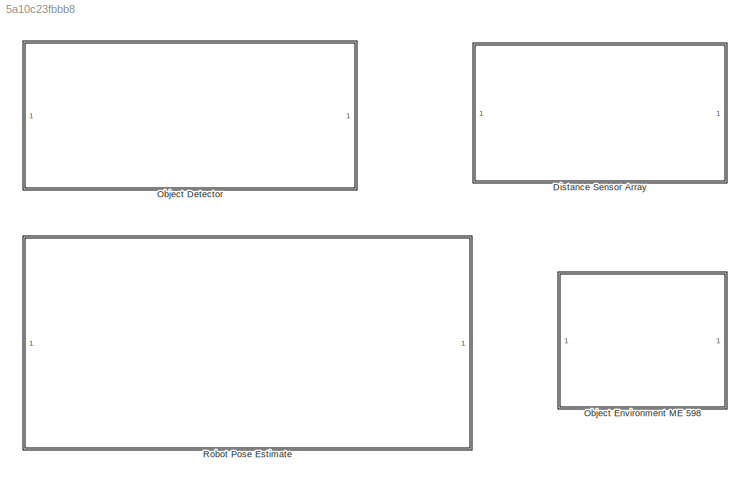
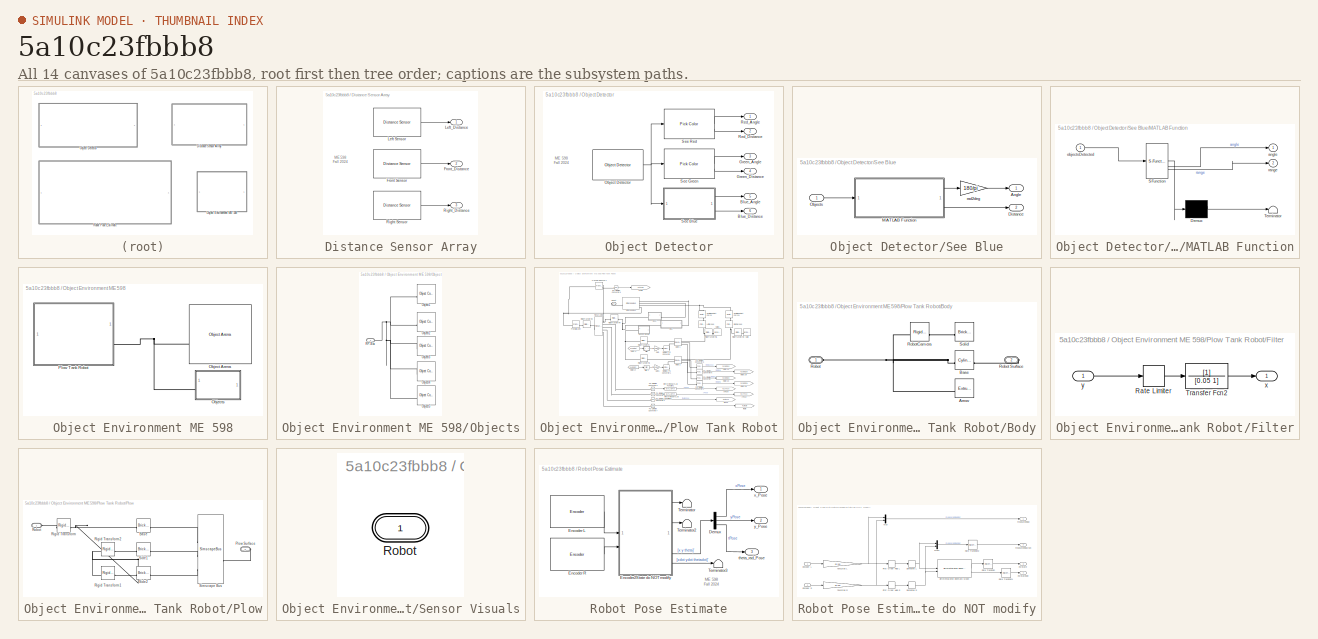
[diagram: thumbnail index - all 14 canvases of the model, root first then tree order]
MODEL slx_5a10c23fbbb8
KIND library
CONFIG AbsTol = auto
CONFIG EnableMultiTasking = off
CONFIG FixedStep = auto
CONFIG InitFcn = RPInit
CONFIG MaxStep = auto
CONFIG MinStep = auto
CONFIG RelTol = 1e-3
CONFIG SampleTimeConstraint = Unconstrained
CONFIG SolverName = ode23t
CONFIG StartTime = 0.0
CONFIG StopTime = 10.0
BLOCK [SubSystem] Distance Sensor Array
BLOCK [Reference] Distance Sensor Array/Front Sensor  REF=RoboticsPlayground/Basic Sensors and Actuators/Distance Sensor
  SourceBlock = RoboticsPlayground/Basic Sensors and Actuators/Distance Sensor
  SourceProductName = Robotics Playground
  SourceType = RP Distance Sensor
BLOCK [Outport] Distance Sensor Array/Front_Distance
  Port = 2
BLOCK [Reference] Distance Sensor Array/Left Sensor  REF=RoboticsPlayground/Basic Sensors and Actuators/Distance Sensor
  SourceBlock = RoboticsPlayground/Basic Sensors and Actuators/Distance Sensor
  SourceProductName = Robotics Playground
  SourceType = RP Distance Sensor
BLOCK [Outport] Distance Sensor Array/Left_Distance
BLOCK [Reference] Distance Sensor Array/Right Sensor  REF=RoboticsPlayground/Basic Sensors and Actuators/Distance Sensor
  SourceBlock = RoboticsPlayground/Basic Sensors and Actuators/Distance Sensor
  SourceProductName = Robotics Playground
  SourceType = RP Distance Sensor
BLOCK [Outport] Distance Sensor Array/Right_Distance
  Port = 3
BLOCK [SubSystem] Object Detector
BLOCK [Outport] Object Detector/Blue_Angle
  Port = 5
BLOCK [Outport] Object Detector/Blue_Distance
  Port = 6
BLOCK [Outport] Object Detector/Green_Angle
  Port = 3
BLOCK [Outport] Object Detector/Green_Distance
  Port = 4
BLOCK [Reference] Object Detector/Object Detector  REF=RoboticsPlayground/Advanced Sensors/Object Detector
  SourceBlock = RoboticsPlayground/Advanced Sensors/Object Detector
  SourceProductName = Robotics Playground
  SourceType = RP Object Sensor
BLOCK [Outport] Object Detector/Red_Angle
BLOCK [Outport] Object Detector/Red_Distance
  Port = 2
BLOCK [SubSystem] Object Detector/See Blue
BLOCK [Outport] Object Detector/See Blue/Angle
  VectorParamsAs1DForOutWhenUnconnected = off
BLOCK [Outport] Object Detector/See Blue/Distance
  Port = 2
  VectorParamsAs1DForOutWhenUnconnected = off
BLOCK [SubSystem] Object Detector/See Blue/MATLAB Function
  ErrorFcn = Stateflow.Translate.translate
  PermitHierarchicalResolution = ExplicitOnly
  SFBlockType = MATLAB Function
  TreatAsAtomicUnit = on
BLOCK [Demux] Object Detector/See Blue/MATLAB Function/ Demux 
  Outputs = 1
BLOCK [S-Function] Object Detector/See Blue/MATLAB Function/ SFunction 
  EnableBusSupport = off
  FunctionName = sf_sfun
  Parameters = color
  PortCounts = [1 3]
  SFcnIsStateOwnerBlock = off
  SFunctionDeploymentMode = off
  Tag = Stateflow S-Function 6
BLOCK [Terminator] Object Detector/See Blue/MATLAB Function/ Terminator 
BLOCK [Outport] Object Detector/See Blue/MATLAB Function/angle
  VectorParamsAs1DForOutWhenUnconnected = off
BLOCK [Inport] Object Detector/See Blue/MATLAB Function/objectsDetected
BLOCK [Outport] Object Detector/See Blue/MATLAB Function/range
  Port = 2
  VectorParamsAs1DForOutWhenUnconnected = off
BLOCK [Inport] Object Detector/See Blue/Objects
BLOCK [Gain] Object Detector/See Blue/rad2deg
  Gain = 180/pi
BLOCK [Reference] Object Detector/See Green  REF=RoboticsPlayground/Advanced Sensors/Pick Color
  SourceBlock = RoboticsPlayground/Advanced Sensors/Pick Color
  SourceProductName = Robotics Playground
  SourceType = RP Pick Color
BLOCK [Reference] Object Detector/See Red  REF=RoboticsPlayground/Advanced Sensors/Pick Color
  SourceBlock = RoboticsPlayground/Advanced Sensors/Pick Color
  SourceProductName = Robotics Playground
  SourceType = RP Pick Color
BLOCK [SubSystem] Object Environment ME 598
  CopyFcn = set_param(gcs,'InitFcn','RPInit');\nset_param(gcs,'Solver','ode23t');\nset_param(gcs, 'EnablePacing', 'on')\nset_param(gcs, 'PacingRate', 1)
BLOCK [Reference] Object Environment ME 598/Object Arena  REF=RP_Simulator_Components/Object Arena
  SourceBlock = RP_Simulator_Components/Object Arena
  SourceType = RP Grid Arena
BLOCK [SubSystem] Object Environment ME 598/Objects
BLOCK [Reference] Object Environment ME 598/Objects/Object1  REF=RP_Simulator_Components/Object Contact-Plow Robot
  SourceBlock = RP_Simulator_Components/Object Contact-Plow Robot
  SourceType = RP Rectangle-Disc obstacle
BLOCK [Reference] Object Environment ME 598/Objects/Object2  REF=RP_Simulator_Components/Object Contact-Plow Robot
  Commented = on
  SourceBlock = RP_Simulator_Components/Object Contact-Plow Robot
  SourceType = RP Rectangle-Disc obstacle
BLOCK [Reference] Object Environment ME 598/Objects/Object3  REF=RP_Simulator_Components/Object Contact-Plow Robot
  SourceBlock = RP_Simulator_Components/Object Contact-Plow Robot
  SourceType = RP Rectangle-Disc obstacle
BLOCK [Reference] Object Environment ME 598/Objects/Object4  REF=RP_Simulator_Components/Object Contact-Plow Robot
  Commented = on
  SourceBlock = RP_Simulator_Components/Object Contact-Plow Robot
  SourceType = RP Rectangle-Disc obstacle
BLOCK [Reference] Object Environment ME 598/Objects/Object5  REF=RP_Simulator_Components/Object Contact-Plow Robot
  Commented = on
  SourceBlock = RP_Simulator_Components/Object Contact-Plow Robot
  SourceType = RP Rectangle-Disc obstacle
BLOCK [PMIOPort] Object Environment ME 598/Objects/RP-Bus
  Side = Left
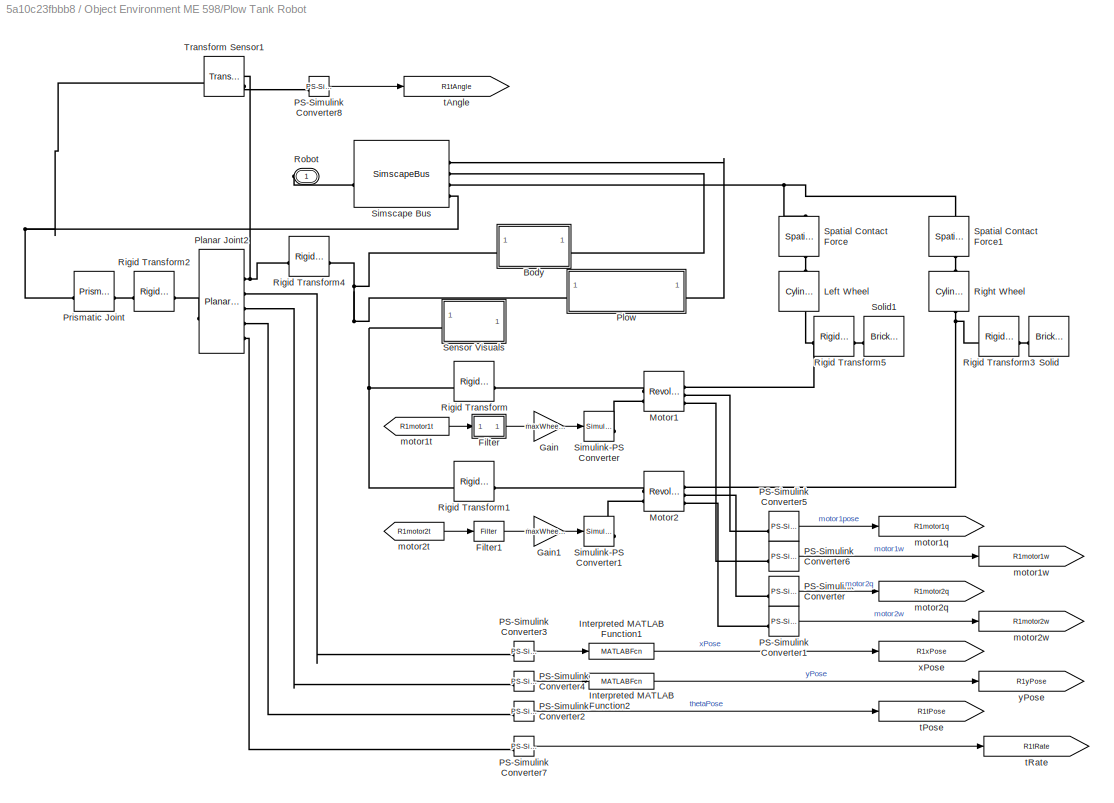
BLOCK [SubSystem] Object Environment ME 598/Plow Tank Robot
  AncestorBlock = RoboticsPlayground/Environments/Object Environment/Plow Tank Robot
BLOCK [SubSystem] Object Environment ME 598/Plow Tank Robot/Body
BLOCK [Reference] Object Environment ME 598/Plow Tank Robot/Body/Arrow  REF=sm_lib/Body Elements/Extruded Solid
  SourceBlock = sm_lib/Body Elements/Extruded Solid
  SourceType = Extruded Solid
BLOCK [Reference] Object Environment ME 598/Plow Tank Robot/Body/Base  REF=sm_lib/Body Elements/Cylindrical Solid
  SourceBlock = sm_lib/Body Elements/Cylindrical Solid
  SourceType = Cylindrical Solid
BLOCK [PMIOPort] Object Environment ME 598/Plow Tank Robot/Body/Robot
  Side = Left
BLOCK [PMIOPort] Object Environment ME 598/Plow Tank Robot/Body/Robot Surface
  Port = 2
  Side = Right
BLOCK [Reference] Object Environment ME 598/Plow Tank Robot/Body/RobotCamera  REF=sm_lib/Frames and
Transforms/Rigid
Transform
  SourceBlock = sm_lib/Frames and\nTransforms/Rigid\nTransform
  SourceType = Rigid\nTransform
BLOCK [Reference] Object Environment ME 598/Plow Tank Robot/Body/Solid  REF=sm_lib/Body Elements/Brick Solid
  SourceBlock = sm_lib/Body Elements/Brick Solid
  SourceType = Brick Solid
BLOCK [SubSystem] Object Environment ME 598/Plow Tank Robot/Filter
BLOCK [RateLimiter] Object Environment ME 598/Plow Tank Robot/Filter/Rate Limiter
  FallingSlewLimit = -300
  RisingSlewLimit = 300
  SampleTimeMode = inherited
BLOCK [TransferFcn] Object Environment ME 598/Plow Tank Robot/Filter/Transfer Fcn2
  Denominator = [0.05 1]
BLOCK [Outport] Object Environment ME 598/Plow Tank Robot/Filter/x
  VectorParamsAs1DForOutWhenUnconnected = off
BLOCK [Inport] Object Environment ME 598/Plow Tank Robot/Filter/y
BLOCK [Reference] Object Environment ME 598/Plow Tank Robot/Filter1  REF=RP_Simulator_Components/Contact Tank Robot/Filter
  SourceBlock = RP_Simulator_Components/Contact Tank Robot/Filter
  SourceType = SubSystem
BLOCK [Gain] Object Environment ME 598/Plow Tank Robot/Gain
  Gain = maxWheelTorque/127
BLOCK [Gain] Object Environment ME 598/Plow Tank Robot/Gain1
  Gain = maxWheelTorque/127
BLOCK [MATLABFcn] Object Environment ME 598/Plow Tank Robot/Interpreted MATLAB Function1
  MATLABFcn = u+floorSize(1)/2
BLOCK [MATLABFcn] Object Environment ME 598/Plow Tank Robot/Interpreted MATLAB Function2
  MATLABFcn = u+floorSize(2)/2
BLOCK [Reference] Object Environment ME 598/Plow Tank Robot/Left Wheel  REF=sm_lib/Body Elements/Cylindrical Solid
  NameLocation = right
  SourceBlock = sm_lib/Body Elements/Cylindrical Solid
  SourceType = Cylindrical Solid
BLOCK [Reference] Object Environment ME 598/Plow Tank Robot/Motor1  REF=sm_lib/Joints/Revolute Joint
  SourceBlock = sm_lib/Joints/Revolute Joint
  SourceType = Revolute Joint
BLOCK [Reference] Object Environment ME 598/Plow Tank Robot/Motor2  REF=sm_lib/Joints/Revolute Joint
  SourceBlock = sm_lib/Joints/Revolute Joint
  SourceType = Revolute Joint
BLOCK [Reference] Object Environment ME 598/Plow Tank Robot/PS-Simulink Converter  REF=nesl_utility/PS-Simulink
Converter
  SourceBlock = nesl_utility/PS-Simulink\nConverter
  SourceType = PS-Simulink\nConverter
BLOCK [Reference] Object Environment ME 598/Plow Tank Robot/PS-Simulink Converter1  REF=nesl_utility/PS-Simulink
Converter
  SourceBlock = nesl_utility/PS-Simulink\nConverter
  SourceType = PS-Simulink\nConverter
BLOCK [Reference] Object Environment ME 598/Plow Tank Robot/PS-Simulink Converter2  REF=nesl_utility/PS-Simulink
Converter
  SourceBlock = nesl_utility/PS-Simulink\nConverter
  SourceType = PS-Simulink\nConverter
BLOCK [Reference] Object Environment ME 598/Plow Tank Robot/PS-Simulink Converter3  REF=nesl_utility/PS-Simulink
Converter
  SourceBlock = nesl_utility/PS-Simulink\nConverter
  SourceType = PS-Simulink\nConverter
BLOCK [Reference] Object Environment ME 598/Plow Tank Robot/PS-Simulink Converter4  REF=nesl_utility/PS-Simulink
Converter
  SourceBlock = nesl_utility/PS-Simulink\nConverter
  SourceType = PS-Simulink\nConverter
BLOCK [Reference] Object Environment ME 598/Plow Tank Robot/PS-Simulink Converter5  REF=nesl_utility/PS-Simulink
Converter
  SourceBlock = nesl_utility/PS-Simulink\nConverter
  SourceType = PS-Simulink\nConverter
BLOCK [Reference] Object Environment ME 598/Plow Tank Robot/PS-Simulink Converter6  REF=nesl_utility/PS-Simulink
Converter
  SourceBlock = nesl_utility/PS-Simulink\nConverter
  SourceType = PS-Simulink\nConverter
BLOCK [Reference] Object Environment ME 598/Plow Tank Robot/PS-Simulink Converter7  REF=nesl_utility/PS-Simulink
Converter
  SourceBlock = nesl_utility/PS-Simulink\nConverter
  SourceType = PS-Simulink\nConverter
BLOCK [Reference] Object Environment ME 598/Plow Tank Robot/PS-Simulink Converter8  REF=nesl_utility/PS-Simulink
Converter
  SourceBlock = nesl_utility/PS-Simulink\nConverter
  SourceType = PS-Simulink\nConverter
BLOCK [Reference] Object Environment ME 598/Plow Tank Robot/Planar Joint2  REF=sm_lib/Joints/Planar Joint
  SourceBlock = sm_lib/Joints/Planar Joint
  SourceType = Planar Joint
BLOCK [SubSystem] Object Environment ME 598/Plow Tank Robot/Plow
BLOCK [Reference] Object Environment ME 598/Plow Tank Robot/Plow/Base  REF=sm_lib/Body Elements/Brick Solid
  SourceBlock = sm_lib/Body Elements/Brick Solid
  SourceType = Brick Solid
BLOCK [PMIOPort] Object Environment ME 598/Plow Tank Robot/Plow/Plow Surface
  Port = 2
  Side = Right
BLOCK [Reference] Object Environment ME 598/Plow Tank Robot/Plow/Rigid Transform  REF=sm_lib/Frames and
Transforms/Rigid
Transform
  SourceBlock = sm_lib/Frames and\nTransforms/Rigid\nTransform
  SourceType = Rigid\nTransform
BLOCK [Reference] Object Environment ME 598/Plow Tank Robot/Plow/Rigid Transform1  REF=sm_lib/Frames and
Transforms/Rigid
Transform
  SourceBlock = sm_lib/Frames and\nTransforms/Rigid\nTransform
  SourceType = Rigid\nTransform
BLOCK [Reference] Object Environment ME 598/Plow Tank Robot/Plow/Rigid Transform2  REF=sm_lib/Frames and
Transforms/Rigid
Transform
  SourceBlock = sm_lib/Frames and\nTransforms/Rigid\nTransform
  SourceType = Rigid\nTransform
BLOCK [PMIOPort] Object Environment ME 598/Plow Tank Robot/Plow/Robot
  Side = Left
BLOCK [Reference] Object Environment ME 598/Plow Tank Robot/Plow/Side1  REF=sm_lib/Body Elements/Brick Solid
  SourceBlock = sm_lib/Body Elements/Brick Solid
  SourceType = Brick Solid
BLOCK [Reference] Object Environment ME 598/Plow Tank Robot/Plow/Side2  REF=sm_lib/Body Elements/Brick Solid
  SourceBlock = sm_lib/Body Elements/Brick Solid
  SourceType = Brick Solid
BLOCK [SimscapeBus] Object Environment ME 598/Plow Tank Robot/Plow/Simscape Bus
  HierarchyStrings = Base;Side1;Side2
BLOCK [Reference] Object Environment ME 598/Plow Tank Robot/Prismatic Joint  REF=sm_lib/Joints/Prismatic
Joint
  SourceBlock = sm_lib/Joints/Prismatic\nJoint
  SourceType = Prismatic\nJoint
BLOCK [Reference] Object Environment ME 598/Plow Tank Robot/Right Wheel  REF=sm_lib/Body Elements/Cylindrical Solid
  NameLocation = right
  SourceBlock = sm_lib/Body Elements/Cylindrical Solid
  SourceType = Cylindrical Solid
BLOCK [Reference] Object Environment ME 598/Plow Tank Robot/Rigid Transform  REF=sm_lib/Frames and
Transforms/Rigid
Transform
  SourceBlock = sm_lib/Frames and\nTransforms/Rigid\nTransform
  SourceType = Rigid\nTransform
BLOCK [Reference] Object Environment ME 598/Plow Tank Robot/Rigid Transform1  REF=sm_lib/Frames and
Transforms/Rigid
Transform
  SourceBlock = sm_lib/Frames and\nTransforms/Rigid\nTransform
  SourceType = Rigid\nTransform
BLOCK [Reference] Object Environment ME 598/Plow Tank Robot/Rigid Transform2  REF=sm_lib/Frames and
Transforms/Rigid
Transform
  SourceBlock = sm_lib/Frames and\nTransforms/Rigid\nTransform
  SourceType = Rigid\nTransform
BLOCK [Reference] Object Environment ME 598/Plow Tank Robot/Rigid Transform3  REF=sm_lib/Frames and
Transforms/Rigid
Transform
  SourceBlock = sm_lib/Frames and\nTransforms/Rigid\nTransform
  SourceType = Rigid\nTransform
BLOCK [Reference] Object Environment ME 598/Plow Tank Robot/Rigid Transform4  REF=sm_lib/Frames and
Transforms/Rigid
Transform
  SourceBlock = sm_lib/Frames and\nTransforms/Rigid\nTransform
  SourceType = Rigid\nTransform
BLOCK [Reference] Object Environment ME 598/Plow Tank Robot/Rigid Transform5  REF=sm_lib/Frames and
Transforms/Rigid
Transform
  SourceBlock = sm_lib/Frames and\nTransforms/Rigid\nTransform
  SourceType = Rigid\nTransform
BLOCK [PMIOPort] Object Environment ME 598/Plow Tank Robot/Robot
  Side = Right
BLOCK [SubSystem] Object Environment ME 598/Plow Tank Robot/Sensor Visuals
BLOCK [PMIOPort] Object Environment ME 598/Plow Tank Robot/Sensor Visuals/Robot
  Side = Left
BLOCK [SimscapeBus] Object Environment ME 598/Plow Tank Robot/Simscape Bus
  HierarchyStrings = PlowSurface;RobotSurface;FloorSurface;Ref
  NameLocation = top
BLOCK [Reference] Object Environment ME 598/Plow Tank Robot/Simulink-PS Converter  REF=nesl_utility/Simulink-PS
Converter
  SourceBlock = nesl_utility/Simulink-PS\nConverter
  SourceType = Simulink-PS\nConverter
BLOCK [Reference] Object Environment ME 598/Plow Tank Robot/Simulink-PS Converter1  REF=nesl_utility/Simulink-PS
Converter
  SourceBlock = nesl_utility/Simulink-PS\nConverter
  SourceType = Simulink-PS\nConverter
BLOCK [Reference] Object Environment ME 598/Plow Tank Robot/Solid  REF=sm_lib/Body Elements/Brick Solid
  NameLocation = top
  SourceBlock = sm_lib/Body Elements/Brick Solid
  SourceType = Brick Solid
BLOCK [Reference] Object Environment ME 598/Plow Tank Robot/Solid1  REF=sm_lib/Body Elements/Brick Solid
  NameLocation = top
  SourceBlock = sm_lib/Body Elements/Brick Solid
  SourceType = Brick Solid
BLOCK [Reference] Object Environment ME 598/Plow Tank Robot/Spatial Contact Force  REF=sm_lib/Forces and
Torques/Spatial
Contact Force
  NameLocation = left
  SourceBlock = sm_lib/Forces and\nTorques/Spatial\nContact Force
  SourceType = Spatial\nContact Force
BLOCK [Reference] Object Environment ME 598/Plow Tank Robot/Spatial Contact Force1  REF=sm_lib/Forces and
Torques/Spatial
Contact Force
  NameLocation = left
  SourceBlock = sm_lib/Forces and\nTorques/Spatial\nContact Force
  SourceType = Spatial\nContact Force
BLOCK [Reference] Object Environment ME 598/Plow Tank Robot/Transform Sensor1  REF=sm_lib/Frames and
Transforms/Transform
Sensor
  SourceBlock = sm_lib/Frames and\nTransforms/Transform\nSensor
  SourceType = Transform\nSensor
BLOCK [Goto] Object Environment ME 598/Plow Tank Robot/motor1q
  GotoTag = R1motor1q
  TagVisibility = global
BLOCK [From] Object Environment ME 598/Plow Tank Robot/motor1t
  GotoTag = R1motor1t
  TagVisibility = global
BLOCK [Goto] Object Environment ME 598/Plow Tank Robot/motor1w
  GotoTag = R1motor1w
  TagVisibility = global
BLOCK [Goto] Object Environment ME 598/Plow Tank Robot/motor2q
  GotoTag = R1motor2q
  TagVisibility = global
BLOCK [From] Object Environment ME 598/Plow Tank Robot/motor2t
  GotoTag = R1motor2t
  TagVisibility = global
BLOCK [Goto] Object Environment ME 598/Plow Tank Robot/motor2w
  GotoTag = R1motor2w
  TagVisibility = global
BLOCK [Goto] Object Environment ME 598/Plow Tank Robot/tAngle
  GotoTag = R1tAngle
  TagVisibility = global
BLOCK [Goto] Object Environment ME 598/Plow Tank Robot/tPose
  GotoTag = R1tPose
  TagVisibility = global
BLOCK [Goto] Object Environment ME 598/Plow Tank Robot/tRate
  GotoTag = R1tRate
  TagVisibility = global
BLOCK [Goto] Object Environment ME 598/Plow Tank Robot/xPose
  GotoTag = R1xPose
  TagVisibility = global
BLOCK [Goto] Object Environment ME 598/Plow Tank Robot/yPose
  GotoTag = R1yPose
  TagVisibility = global
BLOCK [SubSystem] Robot Pose Estimate
BLOCK [Demux] Robot Pose Estimate/Demux
  Outputs = 3
BLOCK [Reference] Robot Pose Estimate/Encoder L  REF=RoboticsPlayground/Basic Sensors and Actuators/Encoder
  SourceBlock = RoboticsPlayground/Basic Sensors and Actuators/Encoder
  SourceProductName = Robotics Playground
  SourceType = RP Motor Encoder
BLOCK [Reference] Robot Pose Estimate/Encoder R  REF=RoboticsPlayground/Basic Sensors and Actuators/Encoder
  SourceBlock = RoboticsPlayground/Basic Sensors and Actuators/Encoder
  SourceProductName = Robotics Playground
  SourceType = RP Motor Encoder
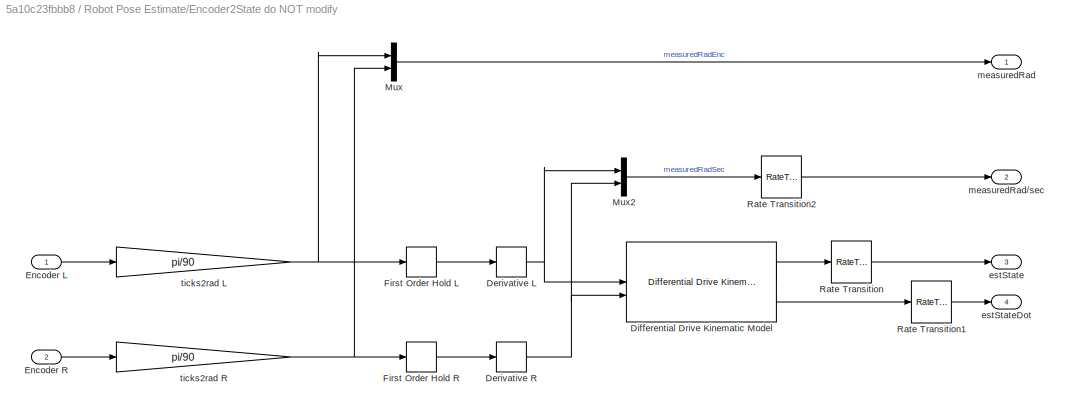
BLOCK [SubSystem] Robot Pose Estimate/Encoder2State do NOT modify
BLOCK [Derivative] Robot Pose Estimate/Encoder2State do NOT modify/Derivative L
BLOCK [Derivative] Robot Pose Estimate/Encoder2State do NOT modify/Derivative R
BLOCK [Reference] Robot Pose Estimate/Encoder2State do NOT modify/Differential Drive Kinematic Model  REF=robotmobilelib/Differential Drive Kinematic Model
  SourceBlock = robotmobilelib/Differential Drive Kinematic Model
  SourceType = Differential Drive Kinematic Model
BLOCK [Inport] Robot Pose Estimate/Encoder2State do NOT modify/Encoder L
BLOCK [Inport] Robot Pose Estimate/Encoder2State do NOT modify/Encoder R
  Port = 2
BLOCK [FirstOrderHold] Robot Pose Estimate/Encoder2State do NOT modify/First Order Hold L
  ErrorTolerance = inf
BLOCK [FirstOrderHold] Robot Pose Estimate/Encoder2State do NOT modify/First Order Hold R
  ErrorTolerance = inf
BLOCK [Mux] Robot Pose Estimate/Encoder2State do NOT modify/Mux
  DisplayOption = bar
  Inputs = 2
BLOCK [Mux] Robot Pose Estimate/Encoder2State do NOT modify/Mux2
  DisplayOption = bar
  Inputs = 2
BLOCK [RateTransition] Robot Pose Estimate/Encoder2State do NOT modify/Rate Transition
  OutPortSampleTime = 0.1
BLOCK [RateTransition] Robot Pose Estimate/Encoder2State do NOT modify/Rate Transition1
  OutPortSampleTime = 0.1
BLOCK [RateTransition] Robot Pose Estimate/Encoder2State do NOT modify/Rate Transition2
  OutPortSampleTime = 0.1
BLOCK [Outport] Robot Pose Estimate/Encoder2State do NOT modify/estState
  Port = 3
BLOCK [Outport] Robot Pose Estimate/Encoder2State do NOT modify/estStateDot
  Port = 4
BLOCK [Outport] Robot Pose Estimate/Encoder2State do NOT modify/measuredRad
BLOCK [Outport] Robot Pose Estimate/Encoder2State do NOT modify/measuredRad//sec
  Port = 2
BLOCK [Gain] Robot Pose Estimate/Encoder2State do NOT modify/ticks2rad L
  Gain = pi/90
BLOCK [Gain] Robot Pose Estimate/Encoder2State do NOT modify/ticks2rad R
  Gain = pi/90
BLOCK [Terminator] Robot Pose Estimate/Terminator
BLOCK [Terminator] Robot Pose Estimate/Terminator2
BLOCK [Terminator] Robot Pose Estimate/Terminator3
BLOCK [Outport] Robot Pose Estimate/theta_rad_Pose
  Port = 3
BLOCK [Outport] Robot Pose Estimate/x_Pose
BLOCK [Outport] Robot Pose Estimate/y_Pose
  Port = 2
ANNOTATION Distance Sensor Array: ME 598 Fall 2024
ANNOTATION Object Detector: ME 598 Fall 2024
ANNOTATION Robot Pose Estimate: ME 598 Fall 2024
LINE Distance Sensor Array/Front Sensor:1 -> Distance Sensor Array/Front_Distance:1
LINE Distance Sensor Array/Left Sensor:1 -> Distance Sensor Array/Left_Distance:1
LINE Distance Sensor Array/Right Sensor:1 -> Distance Sensor Array/Right_Distance:1
NET Object Detector/Object Detector:1 -> Object Detector/See Blue:1, Object Detector/See Green:1, Object Detector/See Red:1
LINE Object Detector/See Blue/MATLAB Function:1 -> Object Detector/See Blue/rad2deg:1
LINE Object Detector/See Blue/MATLAB Function:2 -> Object Detector/See Blue/Distance:1
LINE Object Detector/See Blue/Objects:1 -> Object Detector/See Blue/MATLAB Function:1
LINE Object Detector/See Blue/rad2deg:1 -> Object Detector/See Blue/Angle:1
LINE Object Detector/See Blue:1 -> Object Detector/Blue_Angle:1
LINE Object Detector/See Blue:2 -> Object Detector/Blue_Distance:1
LINE Object Detector/See Green:1 -> Object Detector/Green_Angle:1
LINE Object Detector/See Green:2 -> Object Detector/Green_Distance:1
LINE Object Detector/See Red:1 -> Object Detector/Red_Angle:1
LINE Object Detector/See Red:2 -> Object Detector/Red_Distance:1
LINE Robot Pose Estimate/Demux:1 -> Robot Pose Estimate/x_Pose:1
LINE Robot Pose Estimate/Demux:2 -> Robot Pose Estimate/y_Pose:1
LINE Robot Pose Estimate/Demux:3 -> Robot Pose Estimate/theta_rad_Pose:1
LINE Robot Pose Estimate/Encoder L:1 -> Robot Pose Estimate/Encoder2State do NOT modify:1
LINE Robot Pose Estimate/Encoder R:1 -> Robot Pose Estimate/Encoder2State do NOT modify:2
NET Robot Pose Estimate/Encoder2State do NOT modify/Derivative L:1 -> Robot Pose Estimate/Encoder2State do NOT modify/Differential Drive Kinematic Model:1, Robot Pose Estimate/Encoder2State do NOT modify/Mux2:1
NET Robot Pose Estimate/Encoder2State do NOT modify/Derivative R:1 -> Robot Pose Estimate/Encoder2State do NOT modify/Differential Drive Kinematic Model:2, Robot Pose Estimate/Encoder2State do NOT modify/Mux2:2
LINE Robot Pose Estimate/Encoder2State do NOT modify/Differential Drive Kinematic Model:1 -> Robot Pose Estimate/Encoder2State do NOT modify/Rate Transition:1
LINE Robot Pose Estimate/Encoder2State do NOT modify/Differential Drive Kinematic Model:2 -> Robot Pose Estimate/Encoder2State do NOT modify/Rate Transition1:1
LINE Robot Pose Estimate/Encoder2State do NOT modify/Encoder L:1 -> Robot Pose Estimate/Encoder2State do NOT modify/ticks2rad L:1
LINE Robot Pose Estimate/Encoder2State do NOT modify/Encoder R:1 -> Robot Pose Estimate/Encoder2State do NOT modify/ticks2rad R:1
LINE Robot Pose Estimate/Encoder2State do NOT modify/First Order Hold L:1 -> Robot Pose Estimate/Encoder2State do NOT modify/Derivative L:1
LINE Robot Pose Estimate/Encoder2State do NOT modify/First Order Hold R:1 -> Robot Pose Estimate/Encoder2State do NOT modify/Derivative R:1
LINE Robot Pose Estimate/Encoder2State do NOT modify/Mux2:1 -> Robot Pose Estimate/Encoder2State do NOT modify/Rate Transition2:1
LINE Robot Pose Estimate/Encoder2State do NOT modify/Mux:1 -> Robot Pose Estimate/Encoder2State do NOT modify/measuredRad:1
LINE Robot Pose Estimate/Encoder2State do NOT modify/Rate Transition1:1 -> Robot Pose Estimate/Encoder2State do NOT modify/estStateDot:1
LINE Robot Pose Estimate/Encoder2State do NOT modify/Rate Transition2:1 -> Robot Pose Estimate/Encoder2State do NOT modify/measuredRad//sec:1
LINE Robot Pose Estimate/Encoder2State do NOT modify/Rate Transition:1 -> Robot Pose Estimate/Encoder2State do NOT modify/estState:1
NET Robot Pose Estimate/Encoder2State do NOT modify/ticks2rad L:1 -> Robot Pose Estimate/Encoder2State do NOT modify/First Order Hold L:1, Robot Pose Estimate/Encoder2State do NOT modify/Mux:1
NET Robot Pose Estimate/Encoder2State do NOT modify/ticks2rad R:1 -> Robot Pose Estimate/Encoder2State do NOT modify/First Order Hold R:1, Robot Pose Estimate/Encoder2State do NOT modify/Mux:2
LINE Robot Pose Estimate/Encoder2State do NOT modify:1 -> Robot Pose Estimate/Terminator:1
LINE Robot Pose Estimate/Encoder2State do NOT modify:2 -> Robot Pose Estimate/Terminator2:1
LINE Robot Pose Estimate/Encoder2State do NOT modify:3 -> Robot Pose Estimate/Demux:1
LINE Robot Pose Estimate/Encoder2State do NOT modify:4 -> Robot Pose Estimate/Terminator3:1
note: NET lines group one-source signal fan-out (src -> all destinations, sorted); 1:1 wires keep LINE
CHART Object Detector/See Blue/MATLAB Function states=1 transitions=1
  STATE_LABEL 'eML_blk_kernel()'
  STATE_LABEL 'SCRIPT:\nfunction [angle,range] = pickColor(objectsDetected, color)\n%#codegen\n\nif ~isempty(objectsDetected)\n    colorDetections=objectsDetected(:,3)==color;\n    if any(colorDetections)\n        colorObjects=objectsDetected(colorDetections,1:2);\n        angle=colorObjects(1,2);\n        range=colorObjects(1,1);\n    else\n        angle=NaN;\n        range=NaN;\n    end\nelse\n    angle=NaN;\n    range=NaN;\ne...<+3ch>'
CHART  states=0 transitions=0
